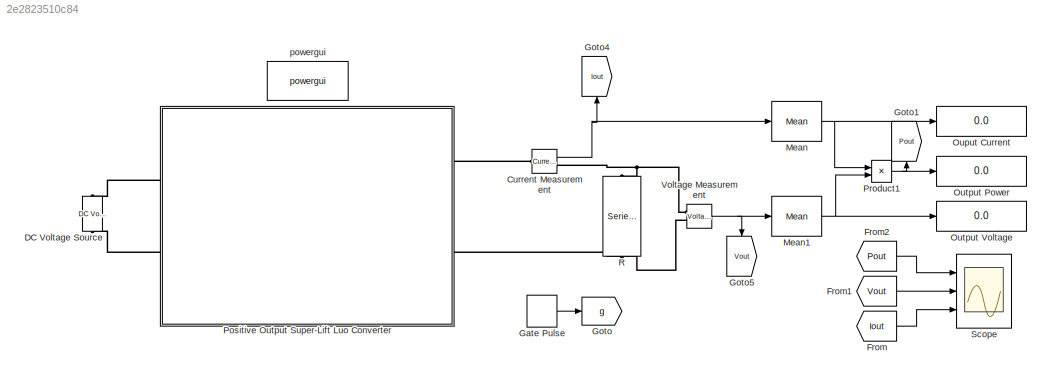
MODEL slx_2e2823510c84
KIND model
CONFIG AbsTol = auto
CONFIG EnableMultiTasking = off
CONFIG FixedStep = 1e-6
CONFIG MaxStep = 1e-5
CONFIG MinStep = auto
CONFIG RelTol = 1e-3
CONFIG SampleTimeConstraint = Unconstrained
CONFIG SolverName = VariableStepAuto
CONFIG StartTime = 0.0
CONFIG StopTime = 1
BLOCK [Reference] Current Measurement  REF=spsCurrentMeasurementLib/Current Measurement
  Ports = [0, 1, 0, 0, 0, 1, 1]
  SourceBlock = spsCurrentMeasurementLib/Current Measurement
  SourceProductBaseCode = PS
  SourceType = Current Measurement
  UserDataPersistent = on
BLOCK [Reference] DC Voltage Source  REF=spsDCVoltageSourceLib/DC Voltage Source
  Ports = [0, 0, 0, 0, 0, 1, 1]
  SourceBlock = spsDCVoltageSourceLib/DC Voltage Source
  SourceProductBaseCode = PS
  SourceType = DC Voltage Source
BLOCK [From] From
  GotoTag = Iout
BLOCK [From] From1
  GotoTag = Vout
BLOCK [From] From2
  GotoTag = Pout
BLOCK [DiscretePulseGenerator] Gate Pulse
  Period = 1/10000
  Ports = [0, 1]
  PulseType = Time based
  PulseWidth = 33.33
BLOCK [Goto] Goto
  GotoTag = g
  TagVisibility = global
BLOCK [Goto] Goto1
  GotoTag = Pout
  NameLocation = right
BLOCK [Goto] Goto4
  GotoTag = Iout
  NameLocation = right
BLOCK [Goto] Goto5
  GotoTag = Vout
  NameLocation = left
BLOCK [Reference] Mean  REF=spsMeanLib/Mean
  Ports = [1, 1]
  SourceBlock = spsMeanLib/Mean
  SourceProductBaseCode = PS
  SourceType = Mean
BLOCK [Reference] Mean1  REF=spsMeanLib/Mean
  Ports = [1, 1]
  SourceBlock = spsMeanLib/Mean
  SourceProductBaseCode = PS
  SourceType = Mean
BLOCK [Display] Ouput Current
  Decimation = 1
  NameLocation = right
  Ports = [1]
BLOCK [Display] Output Power
  Decimation = 1
  NameLocation = right
  Ports = [1]
BLOCK [Display] Output Voltage
  Decimation = 1
  NameLocation = right
  Ports = [1]
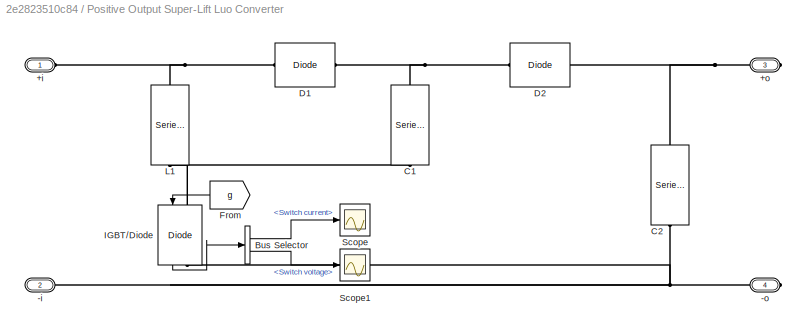
BLOCK [SubSystem] Positive Output Super-Lift Luo Converter
  Ports = [0, 0, 0, 0, 0, 2, 2]
  RequestExecContextInheritance = off
BLOCK [PMIOPort] Positive Output Super-Lift Luo Converter/+i
  Side = Left
BLOCK [PMIOPort] Positive Output Super-Lift Luo Converter/+o
  Port = 3
  Side = Right
BLOCK [PMIOPort] Positive Output Super-Lift Luo Converter/-i
  NameLocation = top
  Port = 2
  Side = Left
BLOCK [PMIOPort] Positive Output Super-Lift Luo Converter/-o
  Port = 4
  Side = Right
BLOCK [BusSelector] Positive Output Super-Lift Luo Converter/Bus Selector
  NameLocation = top
  OutputSignals = Switch current,Switch voltage
  Ports = [1, 2]
BLOCK [Reference] Positive Output Super-Lift Luo Converter/C1  REF=spsSeriesRLCBranchLib/Series RLC Branch
  NameLocation = left
  Ports = [0, 0, 0, 0, 0, 1, 1]
  SourceBlock = spsSeriesRLCBranchLib/Series RLC Branch
  SourceProductBaseCode = PS
  SourceType = Series RLC Branch
BLOCK [Reference] Positive Output Super-Lift Luo Converter/C2  REF=spsSeriesRLCBranchLib/Series RLC Branch
  NameLocation = left
  Ports = [0, 0, 0, 0, 0, 1, 1]
  SourceBlock = spsSeriesRLCBranchLib/Series RLC Branch
  SourceProductBaseCode = PS
  SourceType = Series RLC Branch
BLOCK [Reference] Positive Output Super-Lift Luo Converter/D1  REF=spsDiodeLib/Diode
  Ports = [0, 0, 0, 0, 0, 1, 1]
  SourceBlock = spsDiodeLib/Diode
  SourceProductBaseCode = PS
  SourceType = Diode
BLOCK [Reference] Positive Output Super-Lift Luo Converter/D2  REF=spsDiodeLib/Diode
  Ports = [0, 0, 0, 0, 0, 1, 1]
  SourceBlock = spsDiodeLib/Diode
  SourceProductBaseCode = PS
  SourceType = Diode
BLOCK [From] Positive Output Super-Lift Luo Converter/From
  GotoTag = g
  NameLocation = top
  TagVisibility = global
BLOCK [Reference] Positive Output Super-Lift Luo Converter/IGBT//Diode  REF=spsIGBTDiodeLib/IGBT//Diode
  NameLocation = left
  Ports = [1, 1, 0, 0, 0, 1, 1]
  SourceBlock = spsIGBTDiodeLib/IGBT//Diode
  SourceProductBaseCode = PS
  SourceType = IGBT/Diode
BLOCK [Reference] Positive Output Super-Lift Luo Converter/L1  REF=spsSeriesRLCBranchLib/Series RLC Branch
  NameLocation = left
  Ports = [0, 0, 0, 0, 0, 1, 1]
  SourceBlock = spsSeriesRLCBranchLib/Series RLC Branch
  SourceProductBaseCode = PS
  SourceType = Series RLC Branch
BLOCK [Scope] Positive Output Super-Lift Luo Converter/Scope
  Floating = off
  NameLocation = top
  NumInputPorts = 1
  Ports = [1]
  ScopeSpecificationString = Simulink.scopes.TimeScopeBlockCfg('CurrentConfiguration', extmgr.ConfigurationSet(extmgr.Configuration('Core','General UI',true),extmgr.Configuration('Core','Source UI',true),extmgr.Configuration('Sources','WiredSimulink',true,'DataLoggingVariableName','ScopeData1','DataLoggingSaveFormat','StructureWithTime'),extmgr.Configuration('Visuals','Time Domain',true,'SerializedDisplays',{struct('MinYLimRe...<+1464ch>
BLOCK [Scope] Positive Output Super-Lift Luo Converter/Scope1
  Floating = off
  NameLocation = top
  NumInputPorts = 1
  Ports = [1]
  ScopeSpecificationString = Simulink.scopes.TimeScopeBlockCfg('CurrentConfiguration', extmgr.ConfigurationSet(extmgr.Configuration('Core','General UI',true),extmgr.Configuration('Core','Source UI',true),extmgr.Configuration('Sources','WiredSimulink',true,'DataLoggingVariableName','ScopeData2','DataLoggingSaveFormat','StructureWithTime'),extmgr.Configuration('Visuals','Time Domain',true,'SerializedDisplays',{struct('MinYLimRe...<+1452ch>
BLOCK [Product] Product1
  Ports = [2, 1]
BLOCK [Reference] R  REF=spsSeriesRLCBranchLib/Series RLC Branch
  NameLocation = left
  Ports = [0, 0, 0, 0, 0, 1, 1]
  SourceBlock = spsSeriesRLCBranchLib/Series RLC Branch
  SourceProductBaseCode = PS
  SourceType = Series RLC Branch
BLOCK [Scope] Scope
  Floating = off
  NumInputPorts = 3
  Ports = [3]
  ScopeSpecificationString = Simulink.scopes.TimeScopeBlockCfg('CurrentConfiguration', extmgr.ConfigurationSet(extmgr.Configuration('Core','General UI',true),extmgr.Configuration('Core','Source UI',true),extmgr.Configuration('Sources','WiredSimulink',true),extmgr.Configuration('Visuals','Time Domain',true,'SerializedDisplays',{struct('MinYLimReal','-2818.69646','MaxYLimReal','25368.26815','YLabelReal','','MinYLimMag','  0.000...<+2806ch>
BLOCK [Reference] Voltage Measurement  REF=spsVoltageMeasurementLib/Voltage Measurement
  Ports = [0, 1, 0, 0, 0, 2]
  SourceBlock = spsVoltageMeasurementLib/Voltage Measurement
  SourceProductBaseCode = PS
  SourceType = Voltage Measurement
  UserDataPersistent = on
BLOCK [Reference] powergui  REF=spspowerguiLib/powergui
  NameLocation = top
  Ports = []
  Priority = 1
  SourceBlock = spspowerguiLib/powergui
  SourceProductBaseCode = PS
  SourceType = PSB option menu block
NET Current Measurement:1 -> Goto4:1, Mean:1
LINE From1:1 -> Scope:2
LINE From2:1 -> Scope:1
LINE From:1 -> Scope:3
LINE Gate Pulse:1 -> Goto:1
NET Mean1:1 -> Output Voltage:1, Product1:2
NET Mean:1 -> Ouput Current:1, Product1:1
LINE Positive Output Super-Lift Luo Converter/Bus Selector:1 -> Positive Output Super-Lift Luo Converter/Scope:1
LINE Positive Output Super-Lift Luo Converter/Bus Selector:2 -> Positive Output Super-Lift Luo Converter/Scope1:1
LINE Positive Output Super-Lift Luo Converter/From:1 -> Positive Output Super-Lift Luo Converter/IGBT//Diode:1
LINE Positive Output Super-Lift Luo Converter/IGBT//Diode:1 -> Positive Output Super-Lift Luo Converter/Bus Selector:1
NET Product1:1 -> Goto1:1, Output Power:1
NET Voltage Measurement:1 -> Goto5:1, Mean1:1
PLINE Current Measurement:LConn1 -- Positive Output Super-Lift Luo Converter:RConn1
PNET net1: Current Measurement:RConn1 -- R:LConn1 -- Voltage Measurement:LConn1
PLINE DC Voltage Source:LConn1 -- Positive Output Super-Lift Luo Converter:LConn2
PLINE DC Voltage Source:RConn1 -- Positive Output Super-Lift Luo Converter:LConn1
PNET net2: Positive Output Super-Lift Luo Converter/+i:RConn1 -- Positive Output Super-Lift Luo Converter/D1:LConn1 -- Positive Output Super-Lift Luo Converter/L1:LConn1
PNET net3: Positive Output Super-Lift Luo Converter/+o:RConn1 -- Positive Output Super-Lift Luo Converter/C2:LConn1 -- Positive Output Super-Lift Luo Converter/D2:RConn1
PNET net4: Positive Output Super-Lift Luo Converter/-i:RConn1 -- Positive Output Super-Lift Luo Converter/-o:RConn1 -- Positive Output Super-Lift Luo Converter/C2:RConn1 -- Positive Output Super-Lift Luo Converter/IGBT//Diode:RConn1
PNET net5: Positive Output Super-Lift Luo Converter/C1:LConn1 -- Positive Output Super-Lift Luo Converter/D1:RConn1 -- Positive Output Super-Lift Luo Converter/D2:LConn1
PNET net6: Positive Output Super-Lift Luo Converter/C1:RConn1 -- Positive Output Super-Lift Luo Converter/IGBT//Diode:LConn1 -- Positive Output Super-Lift Luo Converter/L1:RConn1
PNET net7: Positive Output Super-Lift Luo Converter:RConn2 -- R:RConn1 -- Voltage Measurement:LConn2
note: NET lines group one-source signal fan-out (src -> all destinations, sorted); 1:1 wires keep LINE; PNET lines group multi-terminal physical nets as a canonical sorted terminal list (undirected conserving connections); 2-terminal nets keep the pairwise PLINE form
